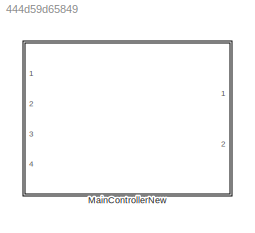
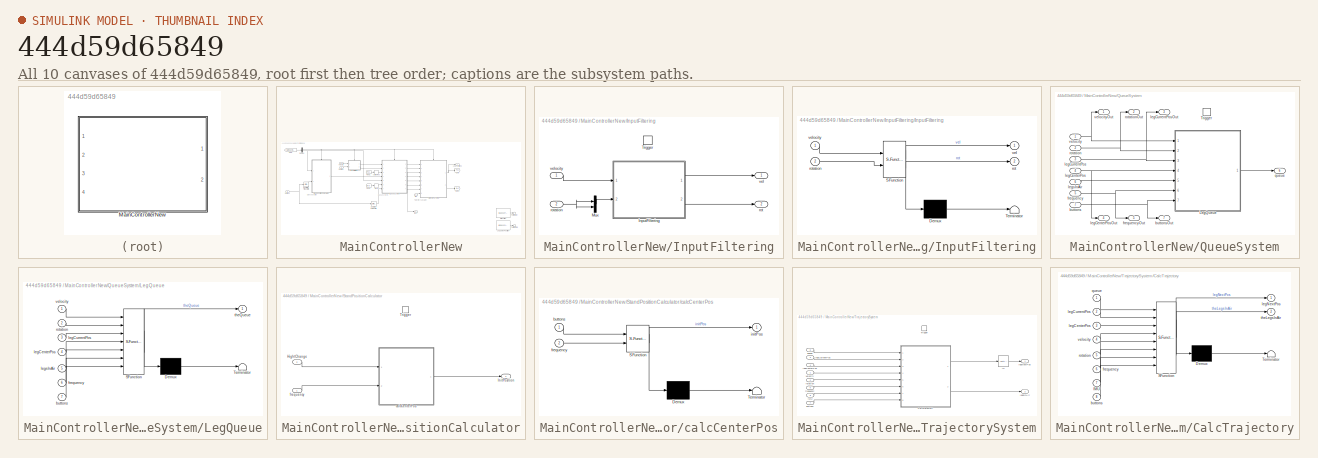
[diagram: thumbnail index - all 10 canvases of the model, root first then tree order]
MODEL slx_444d59d65849
KIND library
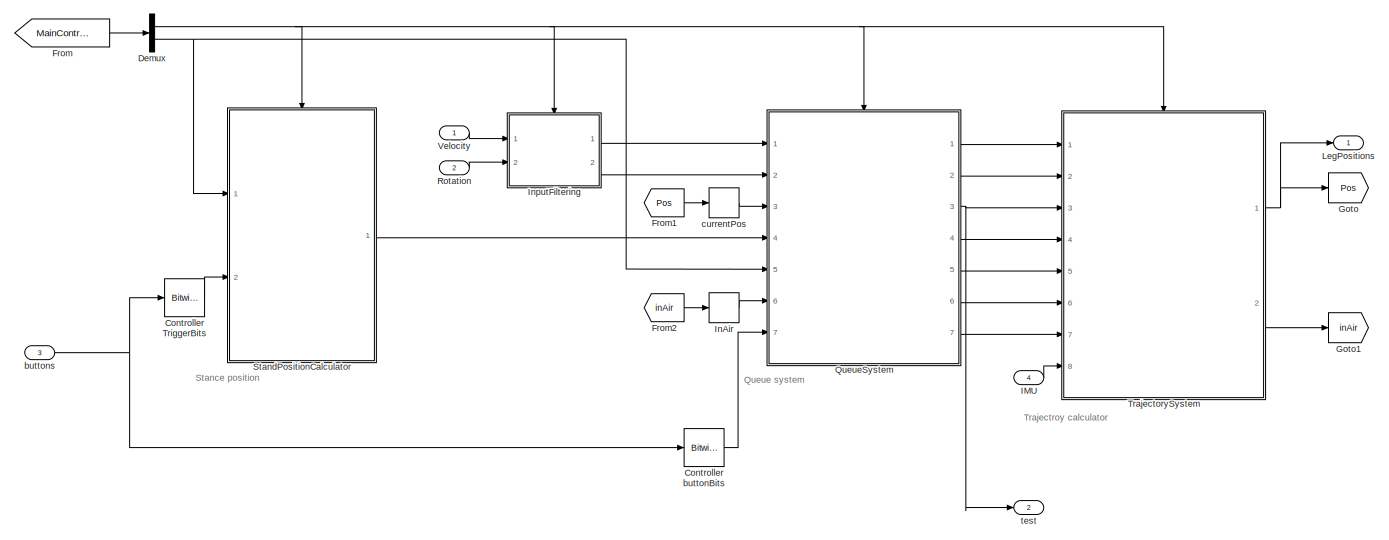
[diagram: MainControllerNew - part 1/2, most of the canvas]
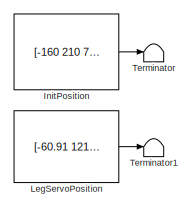
[diagram: MainControllerNew - part 2/2, bottom right region]
BLOCK [SubSystem] MainControllerNew
  Ports = [4, 2]
  RequestExecContextInheritance = off
BLOCK [Reference] MainControllerNew/Controller TriggerBits  REF=simulink/Logic and Bit
Operations/Bitwise
Operator
  BitMask = bin2dec('11000000')
  BitMaskRealWorld = Stored Integer
  NumInputPorts = 1
  Ports = [1, 1]
  SourceBlock = simulink/Logic and Bit\nOperations/Bitwise\nOperator
  SourceType = Bitwise Operator
  UseBitMask = on
  logicop = AND
BLOCK [Reference] MainControllerNew/Controller buttonBits  REF=simulink/Logic and Bit
Operations/Bitwise
Operator
  BitMask = bin2dec('00111111')
  BitMaskRealWorld = Stored Integer
  NumInputPorts = 1
  Ports = [1, 1]
  SourceBlock = simulink/Logic and Bit\nOperations/Bitwise\nOperator
  SourceType = Bitwise Operator
  UseBitMask = on
  logicop = AND
BLOCK [Demux] MainControllerNew/Demux
  DisplayOption = bar
  Outputs = 2
  Ports = [1, 2]
BLOCK [From] MainControllerNew/From
  GotoTag = MainController
BLOCK [From] MainControllerNew/From1
  GotoTag = Pos
BLOCK [From] MainControllerNew/From2
  GotoTag = inAir
BLOCK [Goto] MainControllerNew/Goto
  GotoTag = Pos
BLOCK [Goto] MainControllerNew/Goto1
  GotoTag = inAir
BLOCK [Inport] MainControllerNew/IMU
  IconDisplay = Port number
  Port = 4
BLOCK [Memory] MainControllerNew/InAir
  InheritSampleTime = on
  X0 = zeros(6,1)
BLOCK [Constant] MainControllerNew/InitPosition
  Value = [-160 210 70;-240 0 70; -160 -210 70;160 210 70;240 0 70;160 -210 70]
BLOCK [SubSystem] MainControllerNew/InputFiltering
  Ports = [2, 2, 0, 1]
  RequestExecContextInheritance = off
BLOCK [SubSystem] MainControllerNew/InputFiltering/InputFiltering
  ErrorFcn = Stateflow.Translate.translate
  PermitHierarchicalResolution = ExplicitOnly
  Ports = [2, 2]
  RequestExecContextInheritance = off
  SFBlockType = MATLAB Function
  TreatAsAtomicUnit = on
BLOCK [Demux] MainControllerNew/InputFiltering/InputFiltering/ Demux 
  Outputs = 1
  Ports = [1, 1]
BLOCK [S-Function] MainControllerNew/InputFiltering/InputFiltering/ SFunction 
  EnableBusSupport = off
  FunctionName = sf_sfun
  PortCounts = [2 3]
  Ports = [2, 3]
  Tag = Stateflow S-Function MainController 3
BLOCK [Terminator] MainControllerNew/InputFiltering/InputFiltering/ Terminator 
BLOCK [Outport] MainControllerNew/InputFiltering/InputFiltering/rot
  IconDisplay = Port number
  Port = 2
BLOCK [Inport] MainControllerNew/InputFiltering/InputFiltering/rotation
  IconDisplay = Port number
  Port = 2
BLOCK [Outport] MainControllerNew/InputFiltering/InputFiltering/vel
  IconDisplay = Port number
BLOCK [Inport] MainControllerNew/InputFiltering/InputFiltering/velocity
  IconDisplay = Port number
BLOCK [Mux] MainControllerNew/InputFiltering/Mux
  DisplayOption = bar
  Inputs = 2
  Ports = [2, 1]
BLOCK [TriggerPort] MainControllerNew/InputFiltering/Trigger
  PortDimensions = 1
  Ports = []
  StatesWhenEnabling = held
BLOCK [Outport] MainControllerNew/InputFiltering/rot
  IconDisplay = Port number
  Port = 2
BLOCK [Inport] MainControllerNew/InputFiltering/rotation
  IconDisplay = Port number
  Port = 2
BLOCK [Outport] MainControllerNew/InputFiltering/vel
  IconDisplay = Port number
BLOCK [Inport] MainControllerNew/InputFiltering/velocity
  IconDisplay = Port number
BLOCK [Outport] MainControllerNew/LegPositions
  IconDisplay = Port number
BLOCK [Constant] MainControllerNew/LegServoPosition
  Value = [-60.91 121.91; -103.5 0; -60.91 -121.91; 60.91 121.91; 103.5 0; 60.91 -121.91]
BLOCK [SubSystem] MainControllerNew/QueueSystem
  Ports = [7, 7, 0, 1]
  RequestExecContextInheritance = off
BLOCK [SubSystem] MainControllerNew/QueueSystem/LegQueue
  ErrorFcn = Stateflow.Translate.translate
  PermitHierarchicalResolution = ExplicitOnly
  Ports = [7, 1]
  RequestExecContextInheritance = off
  SFBlockType = MATLAB Function
  TreatAsAtomicUnit = on
BLOCK [Demux] MainControllerNew/QueueSystem/LegQueue/ Demux 
  Outputs = 1
  Ports = [1, 1]
BLOCK [S-Function] MainControllerNew/QueueSystem/LegQueue/ SFunction 
  EnableBusSupport = off
  FunctionName = sf_sfun
  PortCounts = [7 2]
  Ports = [7, 2]
  Tag = Stateflow S-Function MainController 4
BLOCK [Terminator] MainControllerNew/QueueSystem/LegQueue/ Terminator 
BLOCK [Inport] MainControllerNew/QueueSystem/LegQueue/buttons
  IconDisplay = Port number
  Port = 7
BLOCK [Inport] MainControllerNew/QueueSystem/LegQueue/frequency
  IconDisplay = Port number
  Port = 6
BLOCK [Inport] MainControllerNew/QueueSystem/LegQueue/legCenterPos
  IconDisplay = Port number
  Port = 4
BLOCK [Inport] MainControllerNew/QueueSystem/LegQueue/legCurrentPos
  IconDisplay = Port number
  Port = 3
BLOCK [Inport] MainControllerNew/QueueSystem/LegQueue/legsInAir
  IconDisplay = Port number
  Port = 5
BLOCK [Inport] MainControllerNew/QueueSystem/LegQueue/rotation
  IconDisplay = Port number
  Port = 2
BLOCK [Outport] MainControllerNew/QueueSystem/LegQueue/theQueue
  IconDisplay = Port number
BLOCK [Inport] MainControllerNew/QueueSystem/LegQueue/velocity
  IconDisplay = Port number
BLOCK [TriggerPort] MainControllerNew/QueueSystem/Trigger
  PortDimensions = 1
  Ports = []
  StatesWhenEnabling = held
BLOCK [Inport] MainControllerNew/QueueSystem/buttons
  IconDisplay = Port number
  Port = 7
BLOCK [Outport] MainControllerNew/QueueSystem/buttonsOut
  IconDisplay = Port number
  Port = 7
BLOCK [Inport] MainControllerNew/QueueSystem/frequency
  IconDisplay = Port number
  Port = 5
BLOCK [Outport] MainControllerNew/QueueSystem/frequencyOut
  IconDisplay = Port number
  Port = 5
BLOCK [Inport] MainControllerNew/QueueSystem/legCenterPos
  IconDisplay = Port number
  Port = 4
BLOCK [Outport] MainControllerNew/QueueSystem/legCenterPosOut
  IconDisplay = Port number
  Port = 4
BLOCK [Inport] MainControllerNew/QueueSystem/legCurrentPos
  IconDisplay = Port number
  Port = 3
BLOCK [Outport] MainControllerNew/QueueSystem/legCurrentPosOut
  IconDisplay = Port number
  Port = 3
BLOCK [Inport] MainControllerNew/QueueSystem/legsInAir
  IconDisplay = Port number
  Port = 6
BLOCK [Outport] MainControllerNew/QueueSystem/queue
  IconDisplay = Port number
  Port = 6
BLOCK [Inport] MainControllerNew/QueueSystem/rotation
  IconDisplay = Port number
  Port = 2
BLOCK [Outport] MainControllerNew/QueueSystem/rotationOut
  IconDisplay = Port number
  Port = 2
BLOCK [Inport] MainControllerNew/QueueSystem/velocity
  IconDisplay = Port number
BLOCK [Outport] MainControllerNew/QueueSystem/velocityOut
  IconDisplay = Port number
BLOCK [Inport] MainControllerNew/Rotation
  IconDisplay = Port number
  Port = 2
BLOCK [SubSystem] MainControllerNew/StandPositionCalculator
  Ports = [2, 1, 0, 1]
  RequestExecContextInheritance = off
BLOCK [Inport] MainControllerNew/StandPositionCalculator/HightChange
  IconDisplay = Port number
  Port = 2
BLOCK [Outport] MainControllerNew/StandPositionCalculator/InitPosition
  IconDisplay = Port number
BLOCK [TriggerPort] MainControllerNew/StandPositionCalculator/Trigger
  PortDimensions = 1
  Ports = []
  StatesWhenEnabling = held
BLOCK [SubSystem] MainControllerNew/StandPositionCalculator/calcCenterPos
  ErrorFcn = Stateflow.Translate.translate
  PermitHierarchicalResolution = ExplicitOnly
  Ports = [2, 1]
  RequestExecContextInheritance = off
  SFBlockType = MATLAB Function
  TreatAsAtomicUnit = on
BLOCK [Demux] MainControllerNew/StandPositionCalculator/calcCenterPos/ Demux 
  Outputs = 1
  Ports = [1, 1]
BLOCK [S-Function] MainControllerNew/StandPositionCalculator/calcCenterPos/ SFunction 
  EnableBusSupport = off
  FunctionName = sf_sfun
  PortCounts = [2 2]
  Ports = [2, 2]
  Tag = Stateflow S-Function MainController 2
BLOCK [Terminator] MainControllerNew/StandPositionCalculator/calcCenterPos/ Terminator 
BLOCK [Inport] MainControllerNew/StandPositionCalculator/calcCenterPos/buttons
  IconDisplay = Port number
BLOCK [Inport] MainControllerNew/StandPositionCalculator/calcCenterPos/frequency
  IconDisplay = Port number
  Port = 2
BLOCK [Outport] MainControllerNew/StandPositionCalculator/calcCenterPos/initPos
  IconDisplay = Port number
BLOCK [Inport] MainControllerNew/StandPositionCalculator/frequency
  IconDisplay = Port number
BLOCK [Terminator] MainControllerNew/Terminator
BLOCK [Terminator] MainControllerNew/Terminator1
BLOCK [SubSystem] MainControllerNew/TrajectorySystem
  Ports = [8, 2, 0, 1]
  RequestExecContextInheritance = off
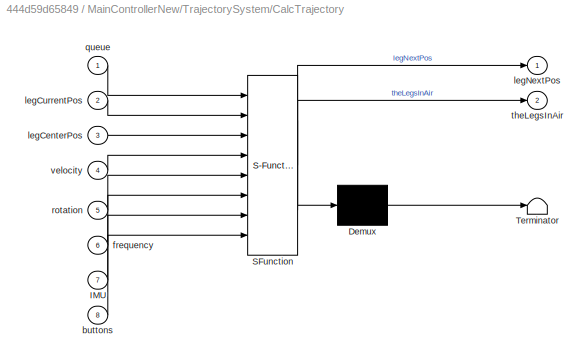
BLOCK [SubSystem] MainControllerNew/TrajectorySystem/CalcTrajectory
  ErrorFcn = Stateflow.Translate.translate
  PermitHierarchicalResolution = ExplicitOnly
  Ports = [8, 2]
  RequestExecContextInheritance = off
  SFBlockType = MATLAB Function
  TreatAsAtomicUnit = on
BLOCK [Demux] MainControllerNew/TrajectorySystem/CalcTrajectory/ Demux 
  Outputs = 1
  Ports = [1, 1]
BLOCK [S-Function] MainControllerNew/TrajectorySystem/CalcTrajectory/ SFunction 
  EnableBusSupport = off
  FunctionName = sf_sfun
  PortCounts = [8 3]
  Ports = [8, 3]
  Tag = Stateflow S-Function MainController 5
BLOCK [Terminator] MainControllerNew/TrajectorySystem/CalcTrajectory/ Terminator 
BLOCK [Inport] MainControllerNew/TrajectorySystem/CalcTrajectory/IMU
  IconDisplay = Port number
  Port = 7
BLOCK [Inport] MainControllerNew/TrajectorySystem/CalcTrajectory/buttons
  IconDisplay = Port number
  Port = 8
BLOCK [Inport] MainControllerNew/TrajectorySystem/CalcTrajectory/frequency
  IconDisplay = Port number
  Port = 6
BLOCK [Inport] MainControllerNew/TrajectorySystem/CalcTrajectory/legCenterPos
  IconDisplay = Port number
  Port = 3
BLOCK [Inport] MainControllerNew/TrajectorySystem/CalcTrajectory/legCurrentPos
  IconDisplay = Port number
  Port = 2
BLOCK [Outport] MainControllerNew/TrajectorySystem/CalcTrajectory/legNextPos
  IconDisplay = Port number
BLOCK [Inport] MainControllerNew/TrajectorySystem/CalcTrajectory/queue
  IconDisplay = Port number
BLOCK [Inport] MainControllerNew/TrajectorySystem/CalcTrajectory/rotation
  IconDisplay = Port number
  Port = 5
BLOCK [Outport] MainControllerNew/TrajectorySystem/CalcTrajectory/theLegsInAir
  IconDisplay = Port number
  Port = 2
BLOCK [Inport] MainControllerNew/TrajectorySystem/CalcTrajectory/velocity
  IconDisplay = Port number
  Port = 4
BLOCK [InitialCondition] MainControllerNew/TrajectorySystem/IC
  Value = [-160 210 70;-240 0 70; -160 -210 70;160 210 70;240 0 70;160 -210 70]
BLOCK [Inport] MainControllerNew/TrajectorySystem/IMU
  IconDisplay = Port number
  Port = 8
BLOCK [TriggerPort] MainControllerNew/TrajectorySystem/Trigger
  PortDimensions = 1
  Ports = []
  StatesWhenEnabling = held
BLOCK [Inport] MainControllerNew/TrajectorySystem/buttons
  IconDisplay = Port number
  Port = 7
BLOCK [Inport] MainControllerNew/TrajectorySystem/frequency
  IconDisplay = Port number
  Port = 5
BLOCK [Inport] MainControllerNew/TrajectorySystem/legCenterPos
  IconDisplay = Port number
  Port = 4
BLOCK [Inport] MainControllerNew/TrajectorySystem/legCurrentPos
  IconDisplay = Port number
  Port = 3
BLOCK [Outport] MainControllerNew/TrajectorySystem/legNextPos
  IconDisplay = Port number
BLOCK [Outport] MainControllerNew/TrajectorySystem/legsInAir
  IconDisplay = Port number
  Port = 2
BLOCK [Inport] MainControllerNew/TrajectorySystem/queue
  IconDisplay = Port number
  Port = 6
BLOCK [Inport] MainControllerNew/TrajectorySystem/rotation
  IconDisplay = Port number
  Port = 2
BLOCK [Inport] MainControllerNew/TrajectorySystem/velocity
  IconDisplay = Port number
BLOCK [Inport] MainControllerNew/Velocity
  IconDisplay = Port number
BLOCK [Inport] MainControllerNew/buttons
  IconDisplay = Port number
  Port = 3
BLOCK [Memory] MainControllerNew/currentPos
  InheritSampleTime = on
  X0 = [-160 210 70;-240 0 70; -160 -210 70;160 210 70;240 0 70;160 -210 70]
BLOCK [Outport] MainControllerNew/test
  IconDisplay = Port number
  Port = 2
ANNOTATION MainControllerNew: Stance position
ANNOTATION MainControllerNew: Queue system
ANNOTATION MainControllerNew: Trajectroy calculator
LINE MainControllerNew/Controller TriggerBits:1 -> MainControllerNew/StandPositionCalculator:2
LINE MainControllerNew/Controller buttonBits:1 -> MainControllerNew/QueueSystem:7
NET MainControllerNew/Demux:1 -> MainControllerNew/InputFiltering:trigger, MainControllerNew/QueueSystem:trigger, MainControllerNew/StandPositionCalculator:trigger, MainControllerNew/TrajectorySystem:trigger
NET MainControllerNew/Demux:2 -> MainControllerNew/QueueSystem:5, MainControllerNew/StandPositionCalculator:1
LINE MainControllerNew/From1:1 -> MainControllerNew/currentPos:1
LINE MainControllerNew/From2:1 -> MainControllerNew/InAir:1
LINE MainControllerNew/From:1 -> MainControllerNew/Demux:1
LINE MainControllerNew/IMU:1 -> MainControllerNew/TrajectorySystem:8
LINE MainControllerNew/InAir:1 -> MainControllerNew/QueueSystem:6
LINE MainControllerNew/InitPosition:1 -> MainControllerNew/Terminator:1
LINE MainControllerNew/InputFiltering/InputFiltering:1 -> MainControllerNew/InputFiltering/vel:1
LINE MainControllerNew/InputFiltering/InputFiltering:2 -> MainControllerNew/InputFiltering/rot:1
LINE MainControllerNew/InputFiltering/Mux:1 -> MainControllerNew/InputFiltering/InputFiltering:2
NET MainControllerNew/InputFiltering/rotation:1 -> MainControllerNew/InputFiltering/Mux:1, MainControllerNew/InputFiltering/Mux:2
LINE MainControllerNew/InputFiltering/velocity:1 -> MainControllerNew/InputFiltering/InputFiltering:1
LINE MainControllerNew/InputFiltering:1 -> MainControllerNew/QueueSystem:1
LINE MainControllerNew/InputFiltering:2 -> MainControllerNew/QueueSystem:2
LINE MainControllerNew/LegServoPosition:1 -> MainControllerNew/Terminator1:1
LINE MainControllerNew/QueueSystem/LegQueue:1 -> MainControllerNew/QueueSystem/queue:1
NET MainControllerNew/QueueSystem/buttons:1 -> MainControllerNew/QueueSystem/LegQueue:7, MainControllerNew/QueueSystem/buttonsOut:1
NET MainControllerNew/QueueSystem/frequency:1 -> MainControllerNew/QueueSystem/LegQueue:6, MainControllerNew/QueueSystem/frequencyOut:1
NET MainControllerNew/QueueSystem/legCenterPos:1 -> MainControllerNew/QueueSystem/LegQueue:4, MainControllerNew/QueueSystem/legCenterPosOut:1
NET MainControllerNew/QueueSystem/legCurrentPos:1 -> MainControllerNew/QueueSystem/LegQueue:3, MainControllerNew/QueueSystem/legCurrentPosOut:1
LINE MainControllerNew/QueueSystem/legsInAir:1 -> MainControllerNew/QueueSystem/LegQueue:5
NET MainControllerNew/QueueSystem/rotation:1 -> MainControllerNew/QueueSystem/LegQueue:2, MainControllerNew/QueueSystem/rotationOut:1
NET MainControllerNew/QueueSystem/velocity:1 -> MainControllerNew/QueueSystem/LegQueue:1, MainControllerNew/QueueSystem/velocityOut:1
LINE MainControllerNew/QueueSystem:1 -> MainControllerNew/TrajectorySystem:1
LINE MainControllerNew/QueueSystem:2 -> MainControllerNew/TrajectorySystem:2
NET MainControllerNew/QueueSystem:3 -> MainControllerNew/TrajectorySystem:3, MainControllerNew/test:1
LINE MainControllerNew/QueueSystem:4 -> MainControllerNew/TrajectorySystem:4
LINE MainControllerNew/QueueSystem:5 -> MainControllerNew/TrajectorySystem:5
LINE MainControllerNew/QueueSystem:6 -> MainControllerNew/TrajectorySystem:6
LINE MainControllerNew/QueueSystem:7 -> MainControllerNew/TrajectorySystem:7
LINE MainControllerNew/Rotation:1 -> MainControllerNew/InputFiltering:2
LINE MainControllerNew/StandPositionCalculator/HightChange:1 -> MainControllerNew/StandPositionCalculator/calcCenterPos:1
LINE MainControllerNew/StandPositionCalculator/calcCenterPos:1 -> MainControllerNew/StandPositionCalculator/InitPosition:1
LINE MainControllerNew/StandPositionCalculator/frequency:1 -> MainControllerNew/StandPositionCalculator/calcCenterPos:2
LINE MainControllerNew/StandPositionCalculator:1 -> MainControllerNew/QueueSystem:4
LINE MainControllerNew/TrajectorySystem/CalcTrajectory:1 -> MainControllerNew/TrajectorySystem/IC:1
LINE MainControllerNew/TrajectorySystem/CalcTrajectory:2 -> MainControllerNew/TrajectorySystem/legsInAir:1
LINE MainControllerNew/TrajectorySystem/IC:1 -> MainControllerNew/TrajectorySystem/legNextPos:1
LINE MainControllerNew/TrajectorySystem/IMU:1 -> MainControllerNew/TrajectorySystem/CalcTrajectory:7
LINE MainControllerNew/TrajectorySystem/buttons:1 -> MainControllerNew/TrajectorySystem/CalcTrajectory:8
LINE MainControllerNew/TrajectorySystem/frequency:1 -> MainControllerNew/TrajectorySystem/CalcTrajectory:6
LINE MainControllerNew/TrajectorySystem/legCenterPos:1 -> MainControllerNew/TrajectorySystem/CalcTrajectory:3
LINE MainControllerNew/TrajectorySystem/legCurrentPos:1 -> MainControllerNew/TrajectorySystem/CalcTrajectory:2
LINE MainControllerNew/TrajectorySystem/queue:1 -> MainControllerNew/TrajectorySystem/CalcTrajectory:1
LINE MainControllerNew/TrajectorySystem/rotation:1 -> MainControllerNew/TrajectorySystem/CalcTrajectory:5
LINE MainControllerNew/TrajectorySystem/velocity:1 -> MainControllerNew/TrajectorySystem/CalcTrajectory:4
NET MainControllerNew/TrajectorySystem:1 -> MainControllerNew/Goto:1, MainControllerNew/LegPositions:1
LINE MainControllerNew/TrajectorySystem:2 -> MainControllerNew/Goto1:1
LINE MainControllerNew/Velocity:1 -> MainControllerNew/InputFiltering:1
NET MainControllerNew/buttons:1 -> MainControllerNew/Controller TriggerBits:1, MainControllerNew/Controller buttonBits:1
LINE MainControllerNew/currentPos:1 -> MainControllerNew/QueueSystem:3
note: NET lines group one-source signal fan-out (src -> all destinations, sorted); 1:1 wires keep LINE
CHART MainControllerNew/StandPositionCalculator/calcCenterPos states=1 transitions=1
  STATE_LABEL 'eML_blk_kernel()'
  STATE_LABEL 'SCRIPT:\nfunction initPos = calcCenterPos(buttons, frequency)\n%This function calculates the leg center positions accoridng to the current\n%chosen height. Initial height is 70 and can be increased/decreased with\n%the indexfinger buttons on the controller. The center positions are saved\n%in "radius" as a radius in cylindircal coordinates corresponding to a\n%height*10 from their index. By knowing the ...<+1949ch>'
CHART MainControllerNew/InputFiltering/InputFiltering states=1 transitions=1
  STATE_LABEL 'eML_blk_kernel()'
  STATE_LABEL 'SCRIPT:\nfunction [vel, rot] = fcn(velocity, rotation)\n\n\n%The joysticks might send positions not equal to 0 when at middle position.\n%Use this function to set an interval for middle position.\n[vel, rot] = ControlStationary(velocity, rotation);\n\n%In order for the robot not to move akwardly rotation is limited during\n%walk.\n[vel, rot] = LimitRotationDuringWalk(vel, rot);\n\nend'
CHART MainControllerNew/QueueSystem/LegQueue states=1 transitions=1
  STATE_LABEL 'eML_blk_kernel()'
  STATE_LABEL 'SCRIPT:\nfunction theQueue  = LegQueue(velocity, rotation, legCurrentPos, legCenterPos, legsInAir, frequency, buttons)\n%The task of this function is to create a queue of legs to move based on\n%what leg is furthest from the main body. Different modes exist and mode 1\n%is the working one.\n\n\npersistent mode\n\nif isempty(mode)\n    mode = 1;\nend\n\nif buttons ~= 0\n    mode = changeMode(mode, buttons);\nend\n...<+3608ch>'
CHART MainControllerNew/TrajectorySystem/CalcTrajectory states=1 transitions=1
  STATE_LABEL 'eML_blk_kernel()'
  STATE_LABEL 'SCRIPT:\nfunction [legNextPos, theLegsInAir] = calcTrajectories(queue, legCurrentPos, legCenterPos, velocity, rotation, frequency, IMU, buttons)\n%This is the function that determines next positions for each leg. This can\n%be done in several different modes. mode 1 and 6 are the currently working\n%ones.\n\npersistent legsInAir;\npersistent trajectory;\npersistent counter;\npersistent height;\npersistent h...<+3608ch>'
